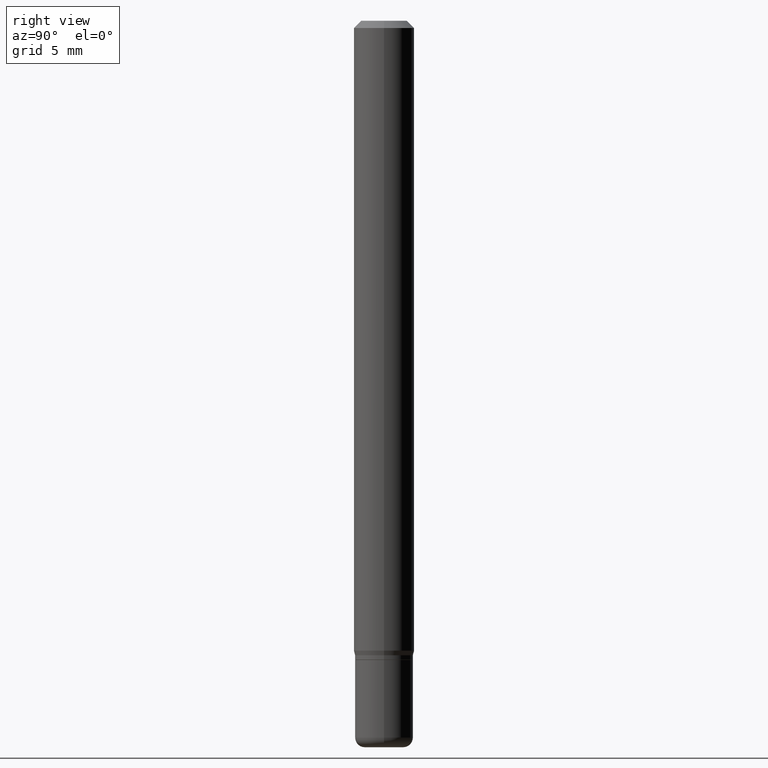
[diagram: clean part render]
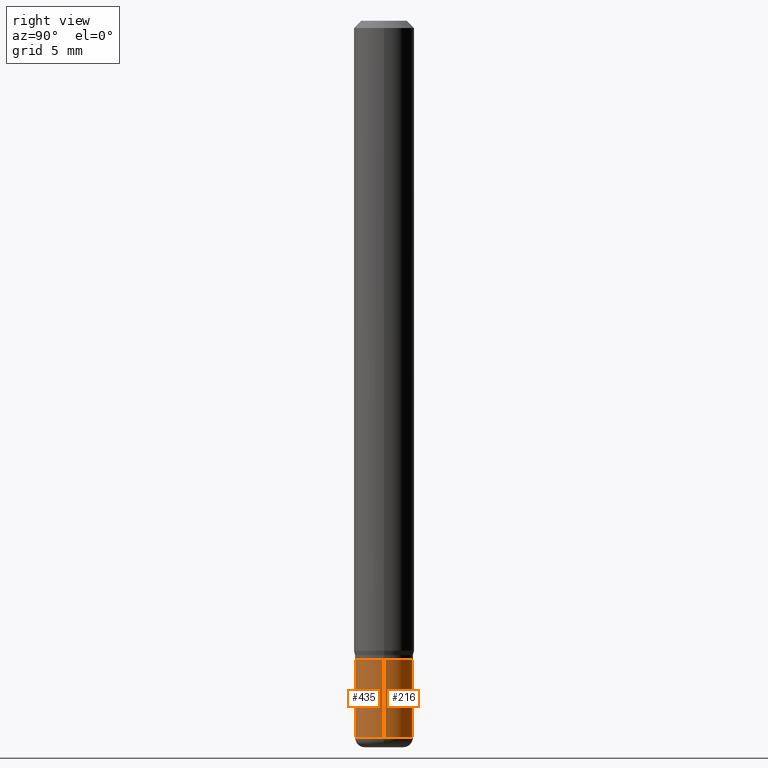
[diagram: same view with one multi-face feature highlighted, each face labeled with its STEP entity id]
A machine part, right view. The highlighted faces form ONE feature: a constant-radius fillet chain: 2 tangent blend faces with common blend radius 1.524 mm. The faces share edges in the B-rep.
Their STEP definitions:
[1] entity #216 (Cylinder):
#25 = CARTESIAN_POINT ( 'NONE',  ( -0.05999999999999999778, -4.461748232924343562E-15, -1.320000000000000062 ) ) ;
#59 = CYLINDRICAL_SURFACE ( 'NONE', #400, 0.06000000000000001860 ) ;
#61 = DIRECTION ( 'NONE',  ( -2.445468806185136597E-29, 3.491481338843145583E-15, 1.000000000000000000 ) ) ;
#71 = CARTESIAN_POINT ( 'NONE',  ( 0.05999999999999999778, -5.027733127934128282E-15, -1.320000000000000062 ) ) ;
#75 = VERTEX_POINT ( 'NONE', #202 ) ;
#77 = CARTESIAN_POINT ( 'NONE',  ( -0.06000000000000001860, 4.263256414560602437E-16, -2.951361054152944114E-30 ) ) ;
#78 = ORIENTED_EDGE ( 'NONE', *, *, #384, .F. ) ;
#103 = DIRECTION ( 'NONE',  ( 1.000000000000000000, -6.982962677686268288E-15, 0.000000000000000000 ) ) ;
#139 = DIRECTION ( 'NONE',  ( 1.000000000000000000, -6.982962677686264344E-15, 0.000000000000000000 ) ) ;
#180 = DIRECTION ( 'NONE',  ( 1.000000000000000000, -6.982962677686266711E-15, 4.876176775795935793E-29 ) ) ;
#193 = VERTEX_POINT ( 'NONE', #209 ) ;
#194 = LINE ( 'NONE', #77, #470 ) ;
#200 = EDGE_CURVE ( 'NONE', #474, #314, #297, .T. ) ;
#202 = CARTESIAN_POINT ( 'NONE',  ( -0.06000000000000003247, -4.461748232924343562E-15, -1.479999999999999982 ) ) ;
#209 = CARTESIAN_POINT ( 'NONE',  ( 0.06000000000000003247, -5.586370142149031512E-15, -1.479999999999999982 ) ) ;
#216 = ADVANCED_FACE ( 'NONE', ( #264 ), #59, .T. ) ;
#264 = FACE_OUTER_BOUND ( 'NONE', #469, .T. ) ;
#266 = CARTESIAN_POINT ( 'NONE',  ( 0.000000000000000000, 0.000000000000000000, 0.000000000000000000 ) ) ;
#267 = DIRECTION ( 'NONE',  ( -2.445468806185136597E-29, 3.491481338843145583E-15, 1.000000000000000000 ) ) ;
#273 = ORIENTED_EDGE ( 'NONE', *, *, #200, .F. ) ;
#282 = AXIS2_PLACEMENT_3D ( 'NONE', #337, #61, #139 ) ;
#292 = EDGE_CURVE ( 'NONE', #193, #75, #348, .T. ) ;
#297 = CIRCLE ( 'NONE', #315, 0.05999999999999999778 ) ;
#312 = ORIENTED_EDGE ( 'NONE', *, *, #292, .T. ) ;
#314 = VERTEX_POINT ( 'NONE', #25 ) ;
#315 = AXIS2_PLACEMENT_3D ( 'NONE', #414, #467, #103 ) ;
#337 = CARTESIAN_POINT ( 'NONE',  ( 3.619293833154002365E-29, -5.167392381487854879E-15, -1.479999999999999982 ) ) ;
#348 = CIRCLE ( 'NONE', #282, 0.06000000000000003247 ) ;
#384 = EDGE_CURVE ( 'NONE', #193, #474, #517, .T. ) ;
#400 = AXIS2_PLACEMENT_3D ( 'NONE', #266, #267, #180 ) ;
#403 = EDGE_CURVE ( 'NONE', #75, #314, #194, .T. ) ;
#414 = CARTESIAN_POINT ( 'NONE',  ( 3.228018824164380442E-29, -4.608755367272952437E-15, -1.320000000000000062 ) ) ;
#429 = ORIENTED_EDGE ( 'NONE', *, *, #403, .T. ) ;
#436 = DIRECTION ( 'NONE',  ( -2.445468806185136877E-29, 3.491481338843145188E-15, 1.000000000000000000 ) ) ;
#444 = VECTOR ( 'NONE', #436, 39.37007874015748143 ) ;
#467 = DIRECTION ( 'NONE',  ( -2.445468806185136597E-29, 3.491481338843145583E-15, 1.000000000000000000 ) ) ;
#469 = EDGE_LOOP ( 'NONE', ( #312, #429, #273, #78 ) ) ;
#470 = VECTOR ( 'NONE', #512, 39.37007874015748143 ) ;
#471 = CARTESIAN_POINT ( 'NONE',  ( 0.06000000000000001860, -4.189777606611761407E-16, 2.925706065477562457E-30 ) ) ;
#474 = VERTEX_POINT ( 'NONE', #71 ) ;
#512 = DIRECTION ( 'NONE',  ( -2.445468806185136877E-29, 3.491481338843145188E-15, 1.000000000000000000 ) ) ;
#517 = LINE ( 'NONE', #471, #444 ) ;
[2] entity #435 (Cylinder):
#25 = CARTESIAN_POINT ( 'NONE',  ( -0.05999999999999999778, -4.461748232924343562E-15, -1.320000000000000062 ) ) ;
#27 = EDGE_CURVE ( 'NONE', #314, #474, #74, .T. ) ;
#29 = CYLINDRICAL_SURFACE ( 'NONE', #188, 0.06000000000000001860 ) ;
#43 = ORIENTED_EDGE ( 'NONE', *, *, #323, .T. ) ;
#71 = CARTESIAN_POINT ( 'NONE',  ( 0.05999999999999999778, -5.027733127934128282E-15, -1.320000000000000062 ) ) ;
#74 = CIRCLE ( 'NONE', #339, 0.05999999999999999778 ) ;
#75 = VERTEX_POINT ( 'NONE', #202 ) ;
#77 = CARTESIAN_POINT ( 'NONE',  ( -0.06000000000000001860, 4.263256414560602437E-16, -2.951361054152944114E-30 ) ) ;
#89 = DIRECTION ( 'NONE',  ( 1.000000000000000000, -6.982962677686268288E-15, 0.000000000000000000 ) ) ;
#119 = CARTESIAN_POINT ( 'NONE',  ( 0.000000000000000000, 0.000000000000000000, 0.000000000000000000 ) ) ;
#146 = DIRECTION ( 'NONE',  ( -2.445468806185136597E-29, 3.491481338843145583E-15, 1.000000000000000000 ) ) ;
#188 = AXIS2_PLACEMENT_3D ( 'NONE', #119, #269, #476 ) ;
#193 = VERTEX_POINT ( 'NONE', #209 ) ;
#194 = LINE ( 'NONE', #77, #470 ) ;
#202 = CARTESIAN_POINT ( 'NONE',  ( -0.06000000000000003247, -4.461748232924343562E-15, -1.479999999999999982 ) ) ;
#209 = CARTESIAN_POINT ( 'NONE',  ( 0.06000000000000003247, -5.586370142149031512E-15, -1.479999999999999982 ) ) ;
#212 = CARTESIAN_POINT ( 'NONE',  ( 3.228018824164380442E-29, -4.608755367272952437E-15, -1.320000000000000062 ) ) ;
#229 = FACE_OUTER_BOUND ( 'NONE', #515, .T. ) ;
#235 = ORIENTED_EDGE ( 'NONE', *, *, #384, .T. ) ;
#245 = ORIENTED_EDGE ( 'NONE', *, *, #27, .F. ) ;
#269 = DIRECTION ( 'NONE',  ( -2.445468806185136597E-29, 3.491481338843145583E-15, 1.000000000000000000 ) ) ;
#278 = ORIENTED_EDGE ( 'NONE', *, *, #403, .F. ) ;
#284 = DIRECTION ( 'NONE',  ( -2.445468806185136597E-29, 3.491481338843145583E-15, 1.000000000000000000 ) ) ;
#314 = VERTEX_POINT ( 'NONE', #25 ) ;
#323 = EDGE_CURVE ( 'NONE', #75, #193, #373, .T. ) ;
#339 = AXIS2_PLACEMENT_3D ( 'NONE', #212, #284, #89 ) ;
#342 = CARTESIAN_POINT ( 'NONE',  ( 3.619293833154002365E-29, -5.167392381487854879E-15, -1.479999999999999982 ) ) ;
#373 = CIRCLE ( 'NONE', #451, 0.06000000000000003247 ) ;
#384 = EDGE_CURVE ( 'NONE', #193, #474, #517, .T. ) ;
#385 = DIRECTION ( 'NONE',  ( 1.000000000000000000, -6.982962677686264344E-15, 0.000000000000000000 ) ) ;
#403 = EDGE_CURVE ( 'NONE', #75, #314, #194, .T. ) ;
#435 = ADVANCED_FACE ( 'NONE', ( #229 ), #29, .T. ) ;
#436 = DIRECTION ( 'NONE',  ( -2.445468806185136877E-29, 3.491481338843145188E-15, 1.000000000000000000 ) ) ;
#444 = VECTOR ( 'NONE', #436, 39.37007874015748143 ) ;
#451 = AXIS2_PLACEMENT_3D ( 'NONE', #342, #146, #385 ) ;
#470 = VECTOR ( 'NONE', #512, 39.37007874015748143 ) ;
#471 = CARTESIAN_POINT ( 'NONE',  ( 0.06000000000000001860, -4.189777606611761407E-16, 2.925706065477562457E-30 ) ) ;
#474 = VERTEX_POINT ( 'NONE', #71 ) ;
#476 = DIRECTION ( 'NONE',  ( 1.000000000000000000, -6.982962677686266711E-15, 4.876176775795935793E-29 ) ) ;
#512 = DIRECTION ( 'NONE',  ( -2.445468806185136877E-29, 3.491481338843145188E-15, 1.000000000000000000 ) ) ;
#515 = EDGE_LOOP ( 'NONE', ( #278, #43, #235, #245 ) ) ;
#517 = LINE ( 'NONE', #471, #444 ) ;